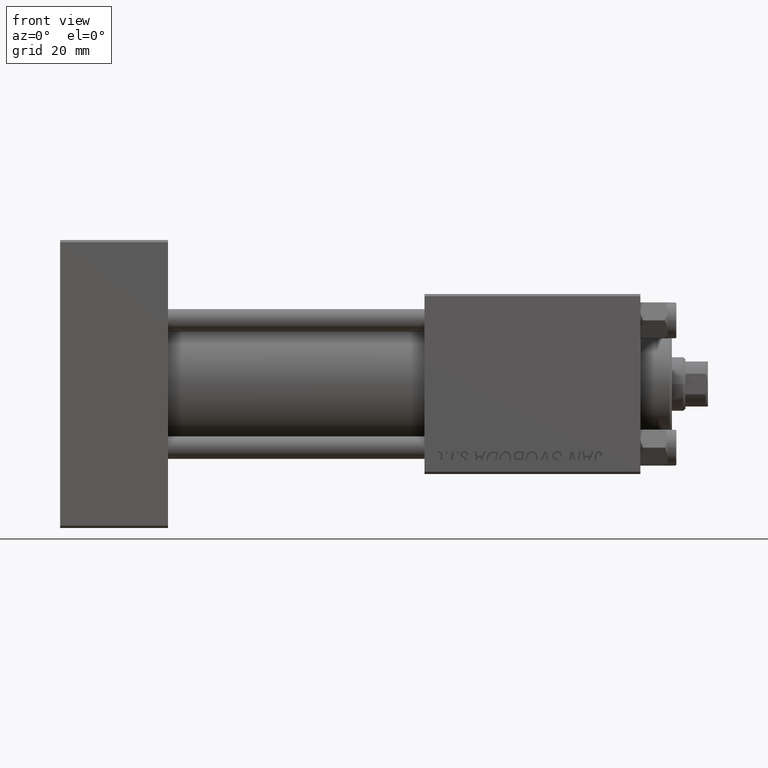
[diagram: clean part render]
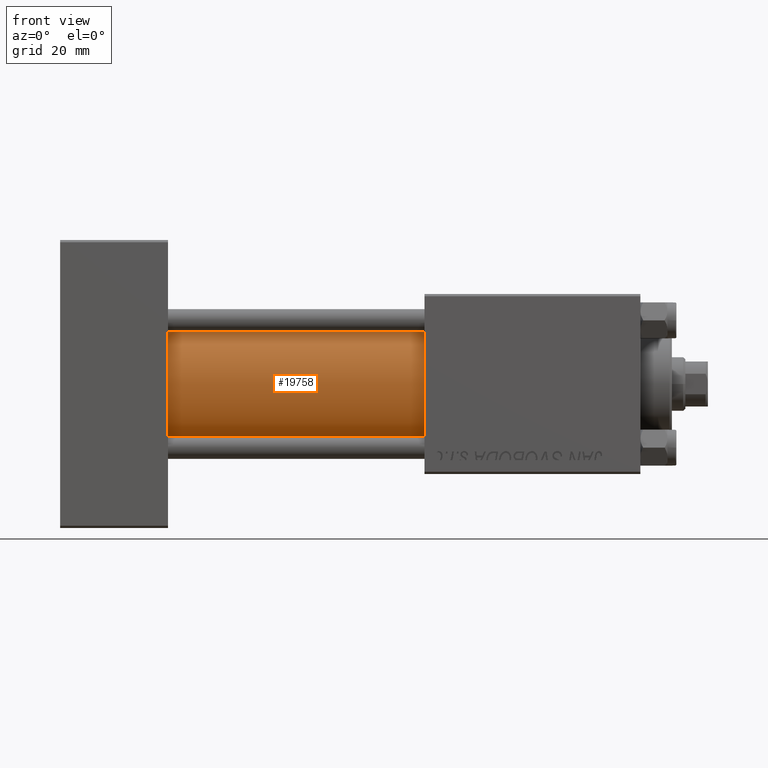
[diagram: same view with one face highlighted and labeled with its STEP entity id]
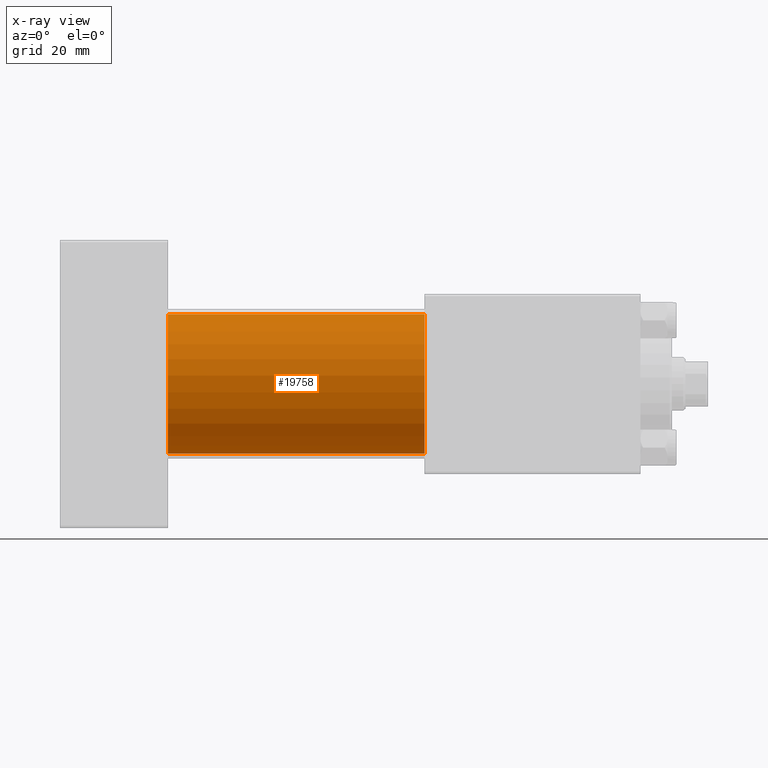
[diagram: x-ray of the same camera — body ghosted, the highlighted face saturated]
A machine part, front view. The second image highlights one B-rep face of the part: STEP entity #19758.
The next image is the same camera in x-ray: the body ghosted, the highlighted face saturated — about 0% of this face is hidden behind the body in this view.
In plain terms, the highlighted cylindrical surface (partial cylindrical patch) has radius 15.5 mm, axis along (-1, -0, -0).
Its self-contained STEP definition (entity closure, byte-faithful):
#72 = EDGE_CURVE ( 'NONE', #4075, #43670, #28349, .T. ) ;
#199 = DIRECTION ( 'NONE',  ( 1.000000000000000000, 0.000000000000000000, 0.000000000000000000 ) ) ;
#2155 = FACE_OUTER_BOUND ( 'NONE', #48585, .T. ) ;
#2986 = EDGE_CURVE ( 'NONE', #31412, #4075, #27676, .T. ) ;
#4075 = VERTEX_POINT ( 'NONE', #9993 ) ;
#4509 = CARTESIAN_POINT ( 'NONE',  ( 81.00000000000000000, -2.602085213965210642E-15, 15.50000000000000000 ) ) ;
#4597 = DIRECTION ( 'NONE',  ( 0.000000000000000000, 0.000000000000000000, 1.000000000000000000 ) ) ;
#5087 = DIRECTION ( 'NONE',  ( 1.000000000000000000, 0.000000000000000000, 0.000000000000000000 ) ) ;
#8020 = CARTESIAN_POINT ( 'NONE',  ( 81.00000000000000000, -2.602085213965210642E-15, 0.000000000000000000 ) ) ;
#9993 = CARTESIAN_POINT ( 'NONE',  ( 81.00000000000000000, -7.038826752868134786E-16, -15.50000000000000000 ) ) ;
#12288 = DIRECTION ( 'NONE',  ( 0.000000000000000000, 0.000000000000000000, -1.000000000000000000 ) ) ;
#13217 = CARTESIAN_POINT ( 'NONE',  ( 81.00000000000000000, -7.038826752868134786E-16, -15.50000000000000000 ) ) ;
#13888 = CARTESIAN_POINT ( 'NONE',  ( 24.00000000000000000, -7.038826752868134786E-16, -15.50000000000000000 ) ) ;
#15590 = AXIS2_PLACEMENT_3D ( 'NONE', #8020, #199, #12288 ) ;
#16230 = ORIENTED_EDGE ( 'NONE', *, *, #2986, .F. ) ;
#17701 = EDGE_CURVE ( 'NONE', #31412, #43049, #49335, .T. ) ;
#17966 = AXIS2_PLACEMENT_3D ( 'NONE', #43452, #5087, #4597 ) ;
#18742 = CARTESIAN_POINT ( 'NONE',  ( 24.00000000000000000, -2.602085213965210642E-15, 15.50000000000000000 ) ) ;
#18769 = CIRCLE ( 'NONE', #17966, 15.50000000000000000 ) ;
#19758 = ADVANCED_FACE ( 'NONE', ( #2155 ), #28143, .T. ) ;
#21319 = DIRECTION ( 'NONE',  ( 0.000000000000000000, 0.000000000000000000, 1.000000000000000000 ) ) ;
#24819 = DIRECTION ( 'NONE',  ( -1.000000000000000000, -0.000000000000000000, -0.000000000000000000 ) ) ;
#27676 = CIRCLE ( 'NONE', #15590, 15.50000000000000000 ) ;
#28143 = CYLINDRICAL_SURFACE ( 'NONE', #49888, 15.50000000000000000 ) ;
#28161 = ORIENTED_EDGE ( 'NONE', *, *, #72, .F. ) ;
#28349 = LINE ( 'NONE', #13217, #34827 ) ;
#29635 = CARTESIAN_POINT ( 'NONE',  ( 81.00000000000000000, -2.602085213965210642E-15, 15.50000000000000000 ) ) ;
#31412 = VERTEX_POINT ( 'NONE', #4509 ) ;
#32640 = ORIENTED_EDGE ( 'NONE', *, *, #44441, .T. ) ;
#34827 = VECTOR ( 'NONE', #24819, 1000.000000000000000 ) ;
#36076 = VECTOR ( 'NONE', #44790, 1000.000000000000000 ) ;
#36727 = CARTESIAN_POINT ( 'NONE',  ( 81.00000000000000000, -2.602085213965210642E-15, 0.000000000000000000 ) ) ;
#41585 = ORIENTED_EDGE ( 'NONE', *, *, #17701, .T. ) ;
#43049 = VERTEX_POINT ( 'NONE', #18742 ) ;
#43452 = CARTESIAN_POINT ( 'NONE',  ( 24.00000000000000000, -2.602085213965210642E-15, 0.000000000000000000 ) ) ;
#43670 = VERTEX_POINT ( 'NONE', #13888 ) ;
#44045 = DIRECTION ( 'NONE',  ( -1.000000000000000000, -0.000000000000000000, -0.000000000000000000 ) ) ;
#44441 = EDGE_CURVE ( 'NONE', #43049, #43670, #18769, .T. ) ;
#44790 = DIRECTION ( 'NONE',  ( -1.000000000000000000, -0.000000000000000000, -0.000000000000000000 ) ) ;
#48585 = EDGE_LOOP ( 'NONE', ( #28161, #16230, #41585, #32640 ) ) ;
#49335 = LINE ( 'NONE', #29635, #36076 ) ;
#49888 = AXIS2_PLACEMENT_3D ( 'NONE', #36727, #44045, #21319 ) ;